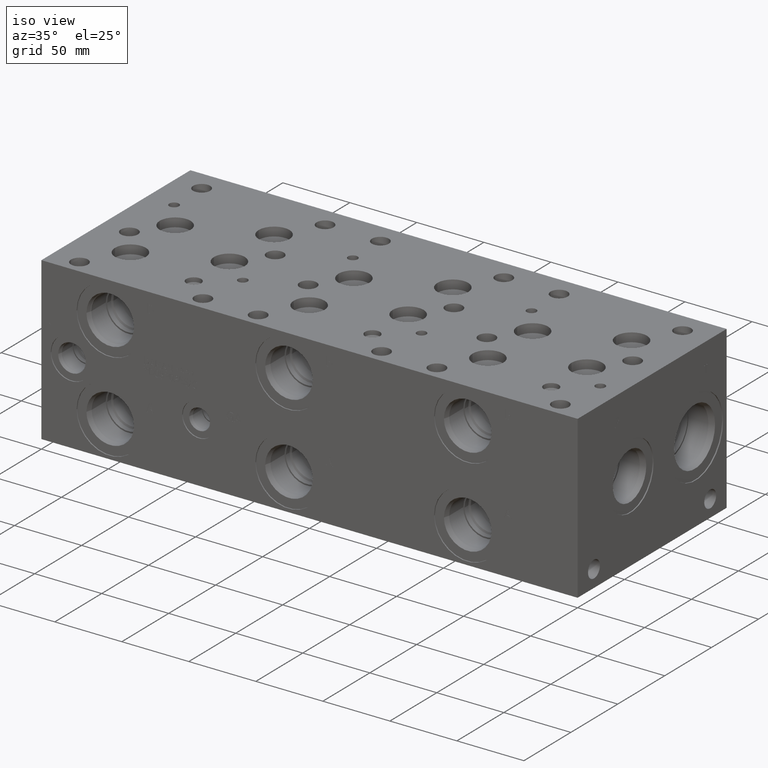
[diagram: clean part render]
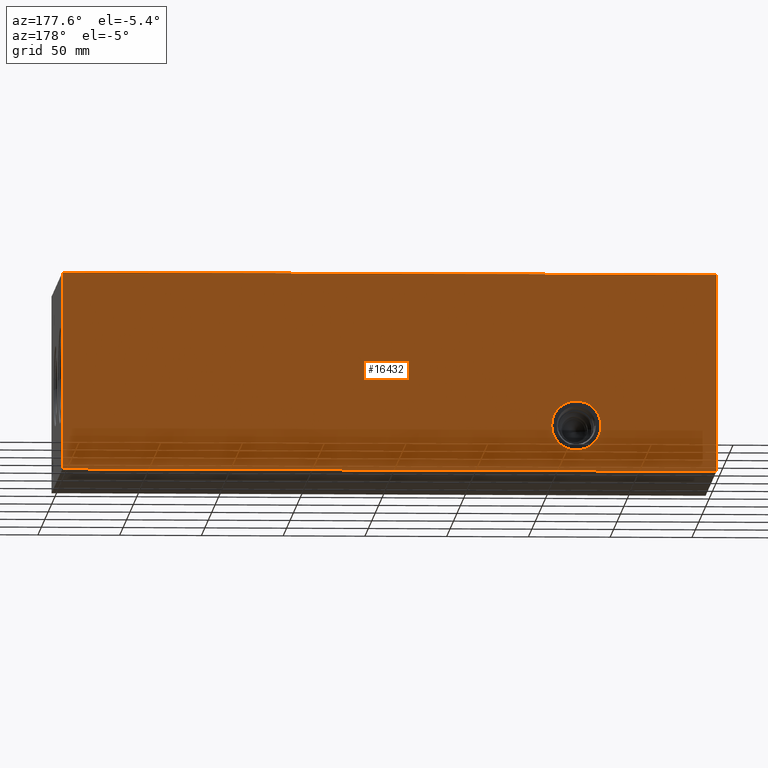
[diagram: tour spotlight — one face highlighted and labeled with its STEP entity id]
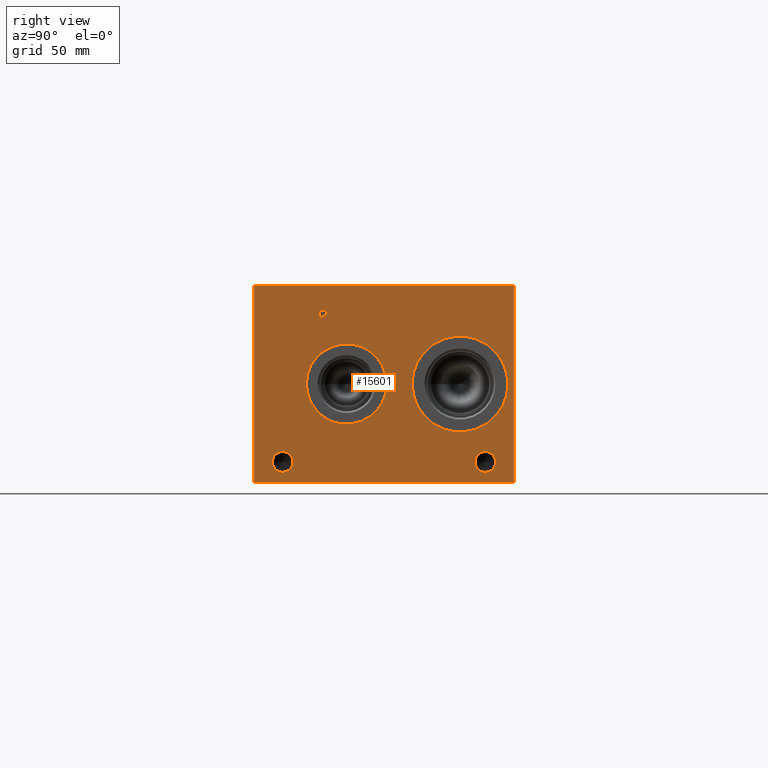
[diagram: tour spotlight — one face highlighted and labeled with its STEP entity id]
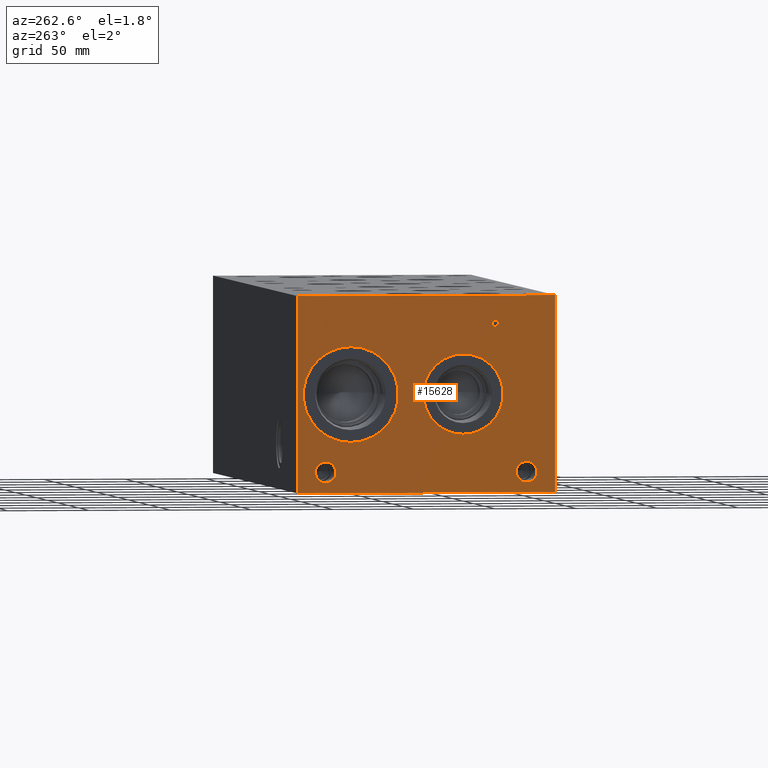
[diagram: tour spotlight — one face highlighted and labeled with its STEP entity id]
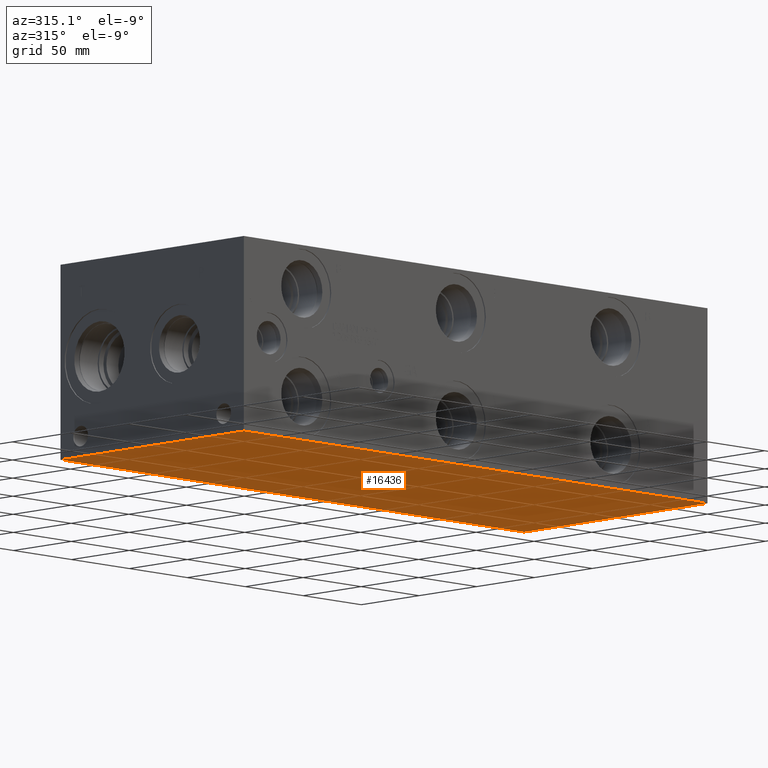
[diagram: tour spotlight — one face highlighted and labeled with its STEP entity id]
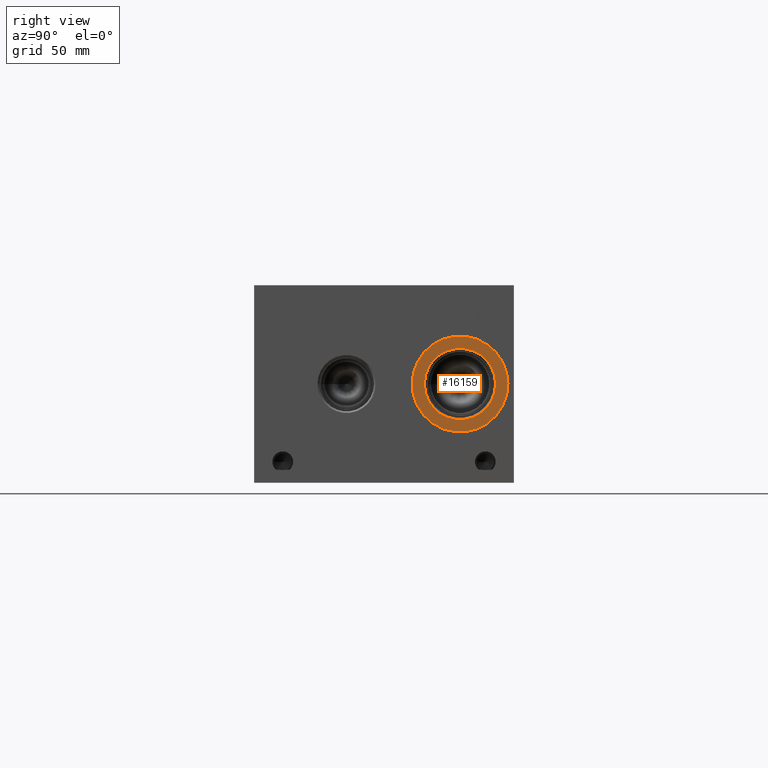
[diagram: tour spotlight — one face highlighted and labeled with its STEP entity id]
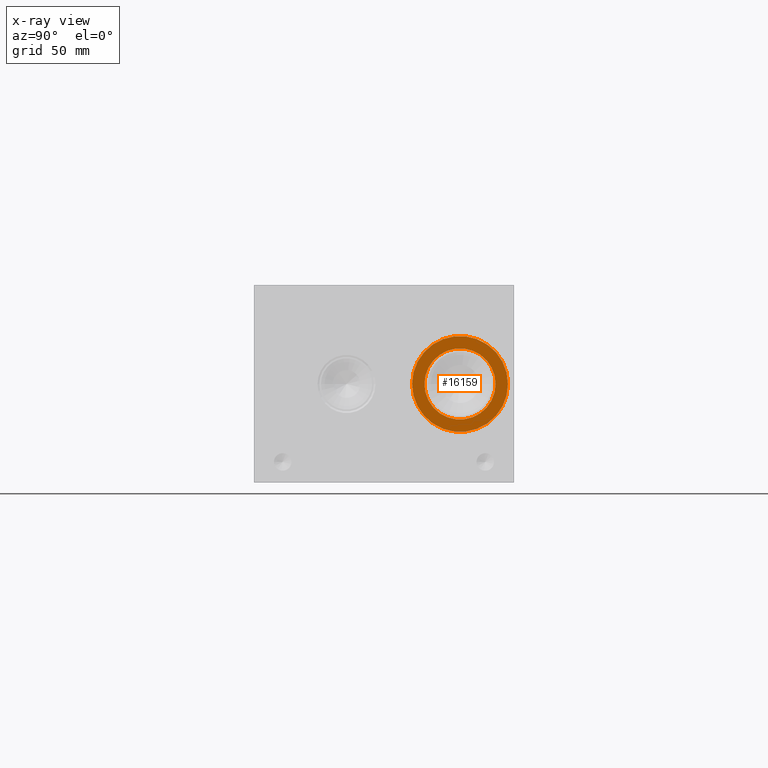
[diagram: x-ray of the same camera — body ghosted, this tour face saturated]
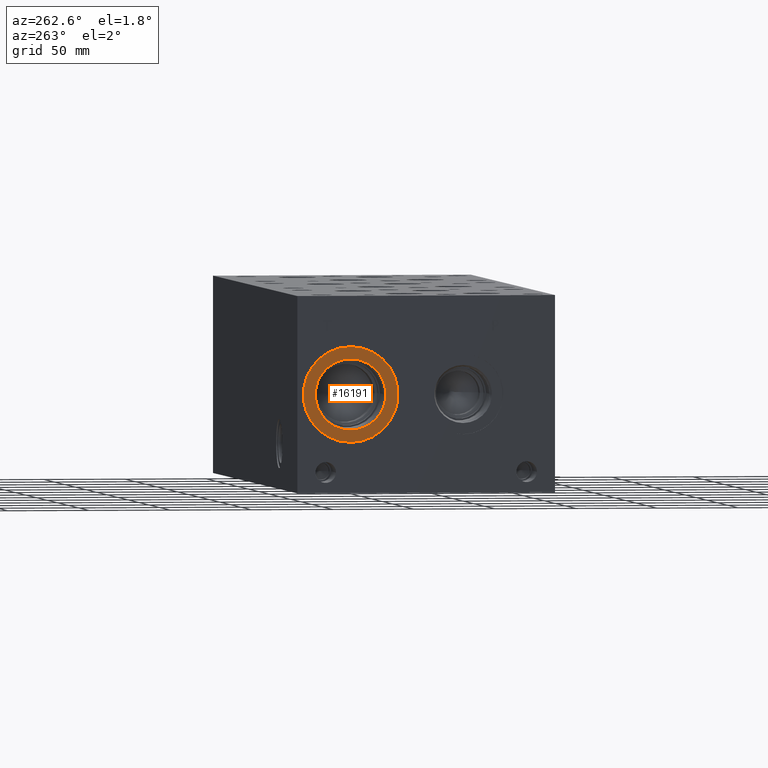
[diagram: tour spotlight — one face highlighted and labeled with its STEP entity id]
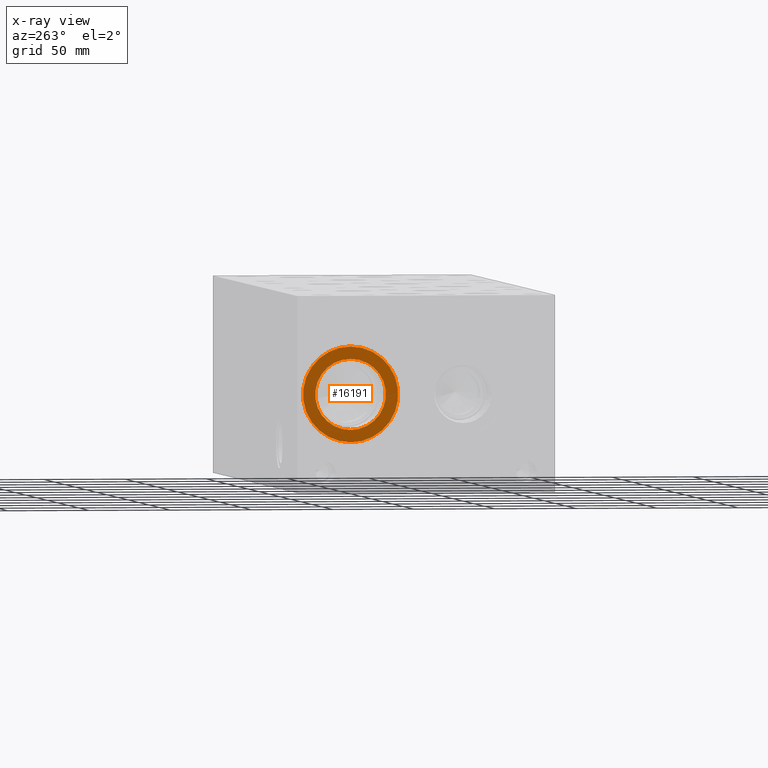
[diagram: x-ray of the same camera — body ghosted, this tour face saturated]
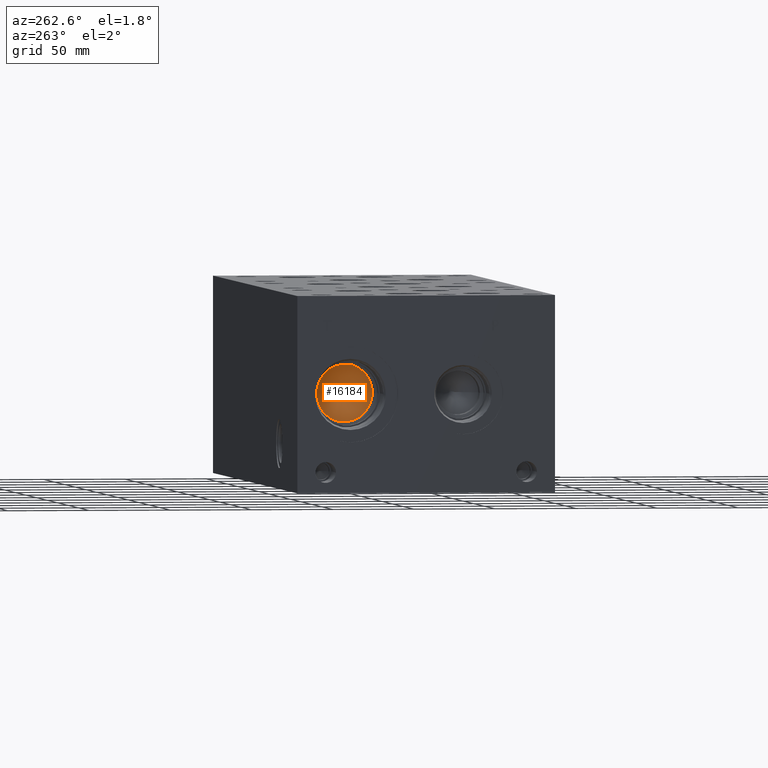
[diagram: tour spotlight — one face highlighted and labeled with its STEP entity id]
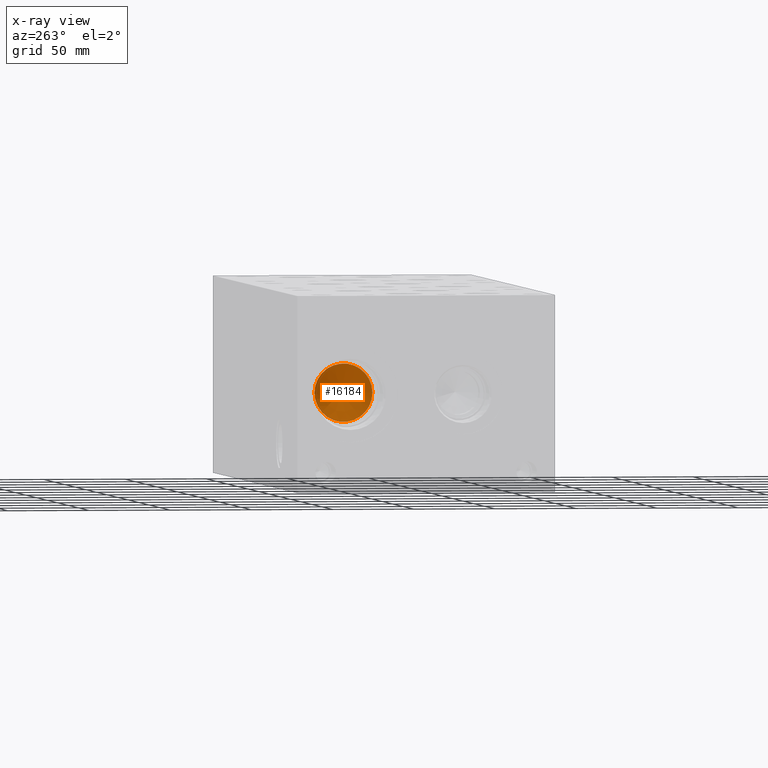
[diagram: x-ray of the same camera — body ghosted, this tour face saturated]
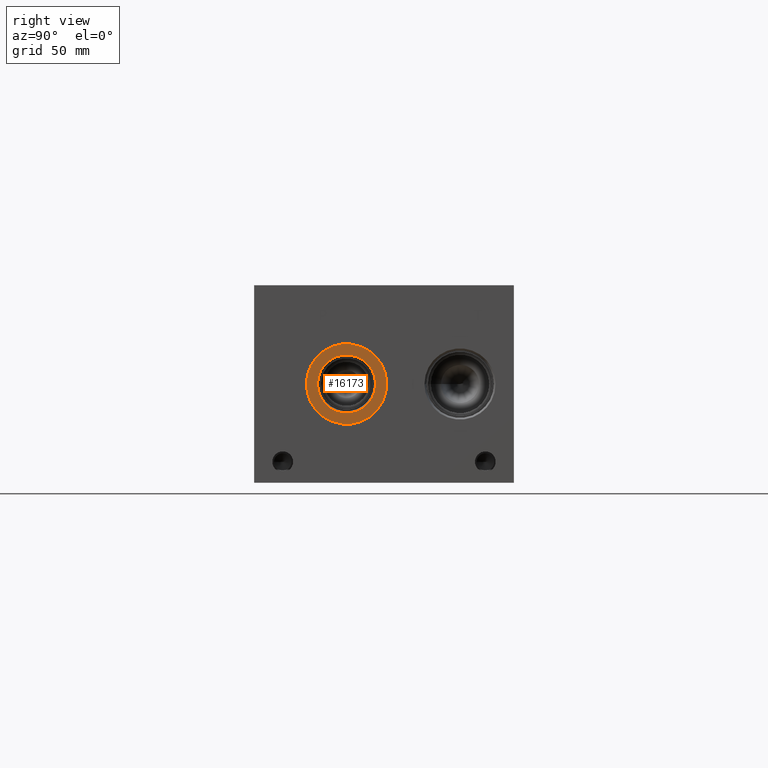
[diagram: tour spotlight — one face highlighted and labeled with its STEP entity id]
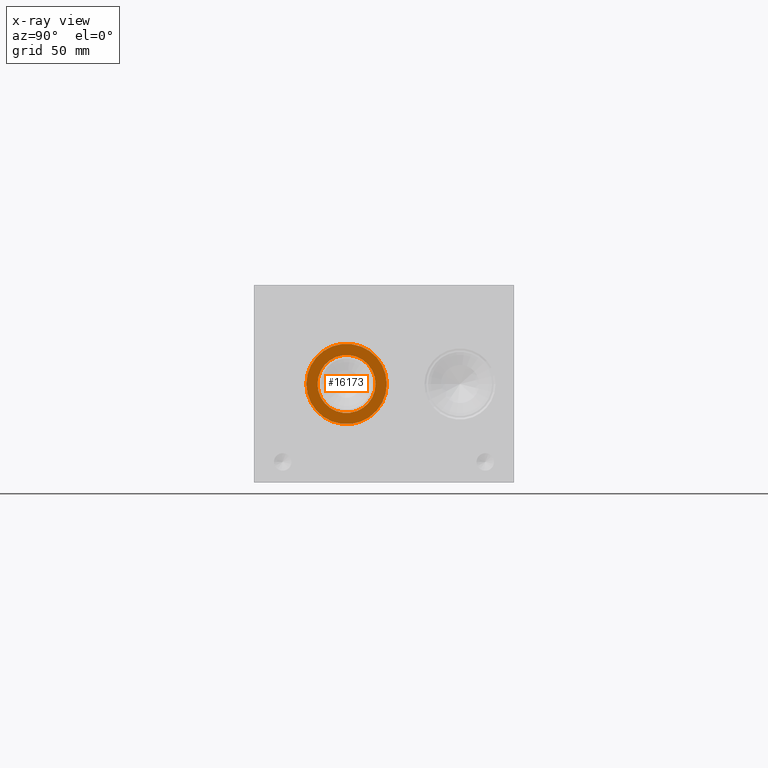
[diagram: x-ray of the same camera — body ghosted, this tour face saturated]
A machine part: a face-by-face anatomy tour. The part has 862 B-rep faces; the first image is the clean iso view, then the 8 largest visible faces are spotlighted one at a time (largest first), each with its STEP entity span.

Face 1 — auxiliary view, entity #16432. In plain terms, the highlighted planar face has unit normal (0, 1, 0).
Definition (entity closure, byte-faithful):
#291=CIRCLE('',#16844,15.08);
#292=CIRCLE('',#16845,15.08);
#881=FACE_BOUND('',#3368,.T.);
#2387=FACE_OUTER_BOUND('',#3367,.T.);
#3367=EDGE_LOOP('',(#14516,#14517,#14518,#14519));
#3368=EDGE_LOOP('',(#14520,#14521));
#3469=LINE('',#21576,#4847);
#3531=LINE('',#21854,#4909);
#4788=LINE('',#28690,#6166);
#4789=LINE('',#28691,#6167);
#4847=VECTOR('',#17711,10.);
#4909=VECTOR('',#17827,10.);
#6166=VECTOR('',#21310,10.);
#6167=VECTOR('',#21311,10.);
#6217=VERTEX_POINT('',#21573);
#6218=VERTEX_POINT('',#21575);
#6276=VERTEX_POINT('',#21847);
#6279=VERTEX_POINT('',#21852);
#7226=VERTEX_POINT('',#27151);
#7227=VERTEX_POINT('',#27152);
#7827=EDGE_CURVE('',#6217,#6218,#3469,.T.);
#7913=EDGE_CURVE('',#6276,#6279,#3531,.T.);
#9323=EDGE_CURVE('',#7226,#7227,#291,.T.);
#9324=EDGE_CURVE('',#7227,#7226,#292,.T.);
#10040=EDGE_CURVE('',#6217,#6276,#4788,.T.);
#10041=EDGE_CURVE('',#6218,#6279,#4789,.T.);
#14516=ORIENTED_EDGE('',*,*,#10040,.T.);
#14517=ORIENTED_EDGE('',*,*,#7913,.T.);
#14518=ORIENTED_EDGE('',*,*,#10041,.F.);
#14519=ORIENTED_EDGE('',*,*,#7827,.F.);
#14520=ORIENTED_EDGE('',*,*,#9323,.T.);
#14521=ORIENTED_EDGE('',*,*,#9324,.T.);
#15027=PLANE('',#17609);
#16432=ADVANCED_FACE('',(#2387,#881),#15027,.T.);
#16844=AXIS2_PLACEMENT_3D('',#27153,#19533,#19534);
#16845=AXIS2_PLACEMENT_3D('',#27154,#19535,#19536);
#17609=AXIS2_PLACEMENT_3D('',#28689,#21308,#21309);
#17711=DIRECTION('',(0.,0.,1.));
#17827=DIRECTION('',(0.,0.,1.));
#19533=DIRECTION('center_axis',(0.,-1.,0.));
#19534=DIRECTION('ref_axis',(1.,0.,0.));
#19535=DIRECTION('center_axis',(0.,-1.,0.));
#19536=DIRECTION('ref_axis',(1.,0.,0.));
#21308=DIRECTION('center_axis',(0.,1.,0.));
#21309=DIRECTION('ref_axis',(-1.,0.,0.));
#21310=DIRECTION('',(-1.,0.,0.));
#21311=DIRECTION('',(-1.,0.,0.));
#21573=CARTESIAN_POINT('',(400.05,158.75,0.));
#21575=CARTESIAN_POINT('',(400.05,158.75,120.65));
#21576=CARTESIAN_POINT('',(400.05,158.75,0.));
#21847=CARTESIAN_POINT('',(0.,158.75,0.));
#21852=CARTESIAN_POINT('',(0.,158.75,120.65));
#21854=CARTESIAN_POINT('',(0.,158.75,0.));
#27151=CARTESIAN_POINT('',(100.805,158.75,27.7876));
#27152=CARTESIAN_POINT('',(70.645,158.75,27.7876));
#27153=CARTESIAN_POINT('Origin',(85.725,158.75,27.7876));
#27154=CARTESIAN_POINT('Origin',(85.725,158.75,27.7876));
#28689=CARTESIAN_POINT('Origin',(400.05,158.75,0.));
#28690=CARTESIAN_POINT('',(400.05,158.75,0.));
#28691=CARTESIAN_POINT('',(400.05,158.75,120.65));

Face 2 — right view, entity #15601. In plain terms, the highlighted planar face has unit normal (1, 0, 0).
Definition (entity closure, byte-faithful):
#259=CIRCLE('',#16470,6.35);
#260=CIRCLE('',#16471,6.35);
#261=CIRCLE('',#16472,6.35);
#262=CIRCLE('',#16473,6.35);
#263=CIRCLE('',#16474,24.5618);
#264=CIRCLE('',#16475,24.5618);
#265=CIRCLE('',#16476,29.2862);
#266=CIRCLE('',#16477,29.2862);
#764=FACE_BOUND('',#2420,.T.);
#765=FACE_BOUND('',#2421,.T.);
#766=FACE_BOUND('',#2422,.T.);
#767=FACE_BOUND('',#2423,.T.);
#768=FACE_BOUND('',#2424,.T.);
#769=FACE_BOUND('',#2425,.T.);
#929=B_SPLINE_CURVE_WITH_KNOTS('',2,(#21474,#21475,#21476,#21477),
 .UNSPECIFIED.,.F.,.F.,(3,1,3),(0.,1.,2.),.UNSPECIFIED.);
#931=B_SPLINE_CURVE_WITH_KNOTS('',2,(#21495,#21496,#21497,#21498),
 .UNSPECIFIED.,.F.,.F.,(3,1,3),(0.,1.,2.),.UNSPECIFIED.);
#933=B_SPLINE_CURVE_WITH_KNOTS('',2,(#21544,#21545,#21546,#21547),
 .UNSPECIFIED.,.F.,.F.,(3,1,3),(0.,1.,2.),.UNSPECIFIED.);
#935=B_SPLINE_CURVE_WITH_KNOTS('',2,(#21562,#21563,#21564,#21565),
 .UNSPECIFIED.,.F.,.F.,(3,1,3),(0.,1.,2.),.UNSPECIFIED.);
#1556=FACE_OUTER_BOUND('',#2419,.T.);
#2419=EDGE_LOOP('',(#10162,#10163,#10164,#10165));
#2420=EDGE_LOOP('',(#10166,#10167,#10168,#10169,#10170,#10171,#10172,#10173));
#2421=EDGE_LOOP('',(#10174,#10175));
#2422=EDGE_LOOP('',(#10176,#10177));
#2423=EDGE_LOOP('',(#10178,#10179));
#2424=EDGE_LOOP('',(#10180,#10181));
#2425=EDGE_LOOP('',(#10182,#10183,#10184,#10185,#10186,#10187,#10188,#10189,
#10190));
#3412=LINE('',#21324,#4790);
#3416=LINE('',#21332,#4794);
#3419=LINE('',#21338,#4797);
#3422=LINE('',#21344,#4800);
#3425=LINE('',#21350,#4803);
#3428=LINE('',#21356,#4806);
#3431=LINE('',#21362,#4809);
#3434=LINE('',#21367,#4812);
#3452=LINE('',#21507,#4830);
#3455=LINE('',#21513,#4833);
#3458=LINE('',#21519,#4836);
#3461=LINE('',#21525,#4839);
#3464=LINE('',#21531,#4842);
#3468=LINE('',#21574,#4846);
#3469=LINE('',#21576,#4847);
#3470=LINE('',#21578,#4848);
#3471=LINE('',#21579,#4849);
#4790=VECTOR('',#17618,10.);
#4794=VECTOR('',#17624,10.);
#4797=VECTOR('',#17629,10.);
#4800=VECTOR('',#17634,10.);
#4803=VECTOR('',#17639,10.);
#4806=VECTOR('',#17644,10.);
#4809=VECTOR('',#17649,10.);
#4812=VECTOR('',#17654,10.);
#4830=VECTOR('',#17682,10.);
#4833=VECTOR('',#17687,10.);
#4836=VECTOR('',#17692,10.);
#4839=VECTOR('',#17697,10.);
#4842=VECTOR('',#17702,10.);
#4846=VECTOR('',#17710,10.);
#4847=VECTOR('',#17711,10.);
#4848=VECTOR('',#17712,10.);
#4849=VECTOR('',#17713,10.);
#6168=VERTEX_POINT('',#21322);
#6169=VERTEX_POINT('',#21323);
#6172=VERTEX_POINT('',#21331);
#6174=VERTEX_POINT('',#21337);
#6176=VERTEX_POINT('',#21343);
#6178=VERTEX_POINT('',#21349);
#6180=VERTEX_POINT('',#21355);
#6182=VERTEX_POINT('',#21361);
#6198=VERTEX_POINT('',#21472);
#6199=VERTEX_POINT('',#21473);
#6202=VERTEX_POINT('',#21494);
#6204=VERTEX_POINT('',#21506);
#6206=VERTEX_POINT('',#21512);
#6208=VERTEX_POINT('',#21518);
#6210=VERTEX_POINT('',#21524);
#6212=VERTEX_POINT('',#21530);
#6214=VERTEX_POINT('',#21543);
#6216=VERTEX_POINT('',#21572);
#6217=VERTEX_POINT('',#21573);
#6218=VERTEX_POINT('',#21575);
#6219=VERTEX_POINT('',#21577);
#6220=VERTEX_POINT('',#21580);
#6221=VERTEX_POINT('',#21581);
#6222=VERTEX_POINT('',#21584);
#6223=VERTEX_POINT('',#21585);
#6224=VERTEX_POINT('',#21588);
#6225=VERTEX_POINT('',#21589);
#6226=VERTEX_POINT('',#21592);
#6227=VERTEX_POINT('',#21593);
#7754=EDGE_CURVE('',#6168,#6169,#3412,.T.);
#7758=EDGE_CURVE('',#6172,#6168,#3416,.T.);
#7761=EDGE_CURVE('',#6174,#6172,#3419,.T.);
#7764=EDGE_CURVE('',#6176,#6174,#3422,.T.);
#7767=EDGE_CURVE('',#6178,#6176,#3425,.T.);
#7770=EDGE_CURVE('',#6180,#6178,#3428,.T.);
#7773=EDGE_CURVE('',#6182,#6180,#3431,.T.);
#7776=EDGE_CURVE('',#6169,#6182,#3434,.T.);
#7799=EDGE_CURVE('',#6198,#6199,#929,.T.);
#7803=EDGE_CURVE('',#6202,#6198,#931,.T.);
#7806=EDGE_CURVE('',#6204,#6202,#3452,.T.);
#7809=EDGE_CURVE('',#6206,#6204,#3455,.T.);
#7812=EDGE_CURVE('',#6208,#6206,#3458,.T.);
#7815=EDGE_CURVE('',#6210,#6208,#3461,.T.);
#7818=EDGE_CURVE('',#6212,#6210,#3464,.T.);
#7821=EDGE_CURVE('',#6214,#6212,#933,.T.);
#7824=EDGE_CURVE('',#6199,#6214,#935,.T.);
#7826=EDGE_CURVE('',#6216,#6217,#3468,.T.);
#7827=EDGE_CURVE('',#6217,#6218,#3469,.T.);
#7828=EDGE_CURVE('',#6219,#6218,#3470,.T.);
#7829=EDGE_CURVE('',#6216,#6219,#3471,.T.);
#7830=EDGE_CURVE('',#6220,#6221,#259,.T.);
#7831=EDGE_CURVE('',#6221,#6220,#260,.T.);
#7832=EDGE_CURVE('',#6222,#6223,#261,.T.);
#7833=EDGE_CURVE('',#6223,#6222,#262,.T.);
#7834=EDGE_CURVE('',#6224,#6225,#263,.T.);
#7835=EDGE_CURVE('',#6225,#6224,#264,.T.);
#7836=EDGE_CURVE('',#6226,#6227,#265,.T.);
#7837=EDGE_CURVE('',#6227,#6226,#266,.T.);
#10162=ORIENTED_EDGE('',*,*,#7826,.T.);
#10163=ORIENTED_EDGE('',*,*,#7827,.T.);
#10164=ORIENTED_EDGE('',*,*,#7828,.F.);
#10165=ORIENTED_EDGE('',*,*,#7829,.F.);
#10166=ORIENTED_EDGE('',*,*,#7754,.T.);
#10167=ORIENTED_EDGE('',*,*,#7776,.T.);
#10168=ORIENTED_EDGE('',*,*,#7773,.T.);
#10169=ORIENTED_EDGE('',*,*,#7770,.T.);
#10170=ORIENTED_EDGE('',*,*,#7767,.T.);
#10171=ORIENTED_EDGE('',*,*,#7764,.T.);
#10172=ORIENTED_EDGE('',*,*,#7761,.T.);
#10173=ORIENTED_EDGE('',*,*,#7758,.T.);
#10174=ORIENTED_EDGE('',*,*,#7830,.T.);
#10175=ORIENTED_EDGE('',*,*,#7831,.T.);
#10176=ORIENTED_EDGE('',*,*,#7832,.T.);
#10177=ORIENTED_EDGE('',*,*,#7833,.T.);
#10178=ORIENTED_EDGE('',*,*,#7834,.T.);
#10179=ORIENTED_EDGE('',*,*,#7835,.T.);
#10180=ORIENTED_EDGE('',*,*,#7836,.T.);
#10181=ORIENTED_EDGE('',*,*,#7837,.T.);
#10182=ORIENTED_EDGE('',*,*,#7799,.T.);
#10183=ORIENTED_EDGE('',*,*,#7824,.T.);
#10184=ORIENTED_EDGE('',*,*,#7821,.T.);
#10185=ORIENTED_EDGE('',*,*,#7818,.T.);
#10186=ORIENTED_EDGE('',*,*,#7815,.T.);
#10187=ORIENTED_EDGE('',*,*,#7812,.T.);
#10188=ORIENTED_EDGE('',*,*,#7809,.T.);
#10189=ORIENTED_EDGE('',*,*,#7806,.T.);
#10190=ORIENTED_EDGE('',*,*,#7803,.T.);
#14636=PLANE('',#16469);
#15601=ADVANCED_FACE('',(#1556,#764,#765,#766,#767,#768,#769),#14636,.T.);
#16469=AXIS2_PLACEMENT_3D('',#21571,#17708,#17709);
#16470=AXIS2_PLACEMENT_3D('',#21582,#17714,#17715);
#16471=AXIS2_PLACEMENT_3D('',#21583,#17716,#17717);
#16472=AXIS2_PLACEMENT_3D('',#21586,#17718,#17719);
#16473=AXIS2_PLACEMENT_3D('',#21587,#17720,#17721);
#16474=AXIS2_PLACEMENT_3D('',#21590,#17722,#17723);
#16475=AXIS2_PLACEMENT_3D('',#21591,#17724,#17725);
#16476=AXIS2_PLACEMENT_3D('',#21594,#17726,#17727);
#16477=AXIS2_PLACEMENT_3D('',#21595,#17728,#17729);
#17618=DIRECTION('',(0.,-1.,0.));
#17624=DIRECTION('',(0.,0.,-1.));
#17629=DIRECTION('',(0.,-1.,0.));
#17634=DIRECTION('',(0.,0.,-1.));
#17639=DIRECTION('',(0.,1.,0.));
#17644=DIRECTION('',(0.,0.,1.));
#17649=DIRECTION('',(0.,-1.,0.));
#17654=DIRECTION('',(0.,0.,1.));
#17682=DIRECTION('',(0.,1.,0.));
#17687=DIRECTION('',(0.,0.,1.));
#17692=DIRECTION('',(0.,-1.,0.));
#17697=DIRECTION('',(0.,0.,-1.));
#17702=DIRECTION('',(0.,-1.,0.));
#17708=DIRECTION('center_axis',(1.,0.,0.));
#17709=DIRECTION('ref_axis',(0.,1.,0.));
#17710=DIRECTION('',(0.,1.,0.));
#17711=DIRECTION('',(0.,0.,1.));
#17712=DIRECTION('',(0.,1.,0.));
#17713=DIRECTION('',(0.,0.,1.));
#17714=DIRECTION('center_axis',(-1.,0.,0.));
#17715=DIRECTION('ref_axis',(0.,1.,0.));
#17716=DIRECTION('center_axis',(-1.,0.,0.));
#17717=DIRECTION('ref_axis',(0.,1.,0.));
#17718=DIRECTION('center_axis',(-1.,0.,0.));
#17719=DIRECTION('ref_axis',(0.,1.,0.));
#17720=DIRECTION('center_axis',(-1.,0.,0.));
#17721=DIRECTION('ref_axis',(0.,1.,0.));
#17722=DIRECTION('center_axis',(-1.,0.,0.));
#17723=DIRECTION('ref_axis',(0.,1.,0.));
#17724=DIRECTION('center_axis',(-1.,0.,0.));
#17725=DIRECTION('ref_axis',(0.,1.,0.));
#17726=DIRECTION('center_axis',(-1.,0.,0.));
#17727=DIRECTION('ref_axis',(0.,1.,0.));
#17728=DIRECTION('center_axis',(-1.,0.,0.));
#17729=DIRECTION('ref_axis',(0.,1.,0.));
#21322=CARTESIAN_POINT('',(400.05,137.182765271453,99.187));
#21323=CARTESIAN_POINT('',(400.05,136.338843079914,99.187));
#21324=CARTESIAN_POINT('',(400.05,68.5913826357265,99.187));
#21331=CARTESIAN_POINT('',(400.05,137.182765271453,104.785703319482));
#21332=CARTESIAN_POINT('',(400.05,137.182765271453,52.3928516597408));
#21337=CARTESIAN_POINT('',(400.05,139.313154218388,104.785703319482));
#21338=CARTESIAN_POINT('',(400.05,69.656577109194,104.785703319482));
#21343=CARTESIAN_POINT('',(400.05,139.313154218388,105.536999904633));
#21344=CARTESIAN_POINT('',(400.05,139.313154218388,52.7684999523163));
#21349=CARTESIAN_POINT('',(400.05,134.208454132978,105.536999904633));
#21350=CARTESIAN_POINT('',(400.05,67.1042270664892,105.536999904633));
#21355=CARTESIAN_POINT('',(400.05,134.208454132978,104.785703319482));
#21356=CARTESIAN_POINT('',(400.05,134.208454132978,52.3928516597408));
#21361=CARTESIAN_POINT('',(400.05,136.338843079914,104.785703319482));
#21362=CARTESIAN_POINT('',(400.05,68.1694215399568,104.785703319482));
#21367=CARTESIAN_POINT('',(400.05,136.338843079914,49.5935));
#21472=CARTESIAN_POINT('',(400.05,43.3721672023594,105.140768143971));
#21473=CARTESIAN_POINT('',(400.05,44.128609654532,103.622737372604));
#21474=CARTESIAN_POINT('Ctrl Pts',(400.05,43.3721672023594,105.140768143971));
#21475=CARTESIAN_POINT('Ctrl Pts',(400.05,43.7272320268486,104.898912393956));
#21476=CARTESIAN_POINT('Ctrl Pts',(400.05,44.128609654532,104.152761675827));
#21477=CARTESIAN_POINT('Ctrl Pts',(400.05,44.128609654532,103.622737372604));
#21494=CARTESIAN_POINT('',(400.05,41.7100521543883,105.536999904633));
#21495=CARTESIAN_POINT('Ctrl Pts',(400.05,41.7100521543883,105.536999904633));
#21496=CARTESIAN_POINT('Ctrl Pts',(400.05,42.2760975267624,105.536999904633));
#21497=CARTESIAN_POINT('Ctrl Pts',(400.05,43.068561048086,105.351748691856));
#21498=CARTESIAN_POINT('Ctrl Pts',(400.05,43.3721672023594,105.140768143971));
#21506=CARTESIAN_POINT('',(400.05,40.1148333776978,105.536999904633));
#21507=CARTESIAN_POINT('',(400.05,20.0574166888489,105.536999904633));
#21512=CARTESIAN_POINT('',(400.05,40.1148333776978,99.187));
#21513=CARTESIAN_POINT('',(400.05,40.1148333776978,49.5935));
#21518=CARTESIAN_POINT('',(400.05,40.9587555692373,99.187));
#21519=CARTESIAN_POINT('',(400.05,20.4793777846186,99.187));
#21524=CARTESIAN_POINT('',(400.05,40.9587555692373,101.554098829928));
#21525=CARTESIAN_POINT('',(400.05,40.9587555692373,50.7770494149639));
#21530=CARTESIAN_POINT('',(400.05,41.6740310852372,101.554098829928));
#21531=CARTESIAN_POINT('',(400.05,20.8370155426186,101.554098829928));
#21543=CARTESIAN_POINT('',(400.05,43.5728560162011,102.21276980869));
#21544=CARTESIAN_POINT('Ctrl Pts',(400.05,43.5728560162011,102.21276980869));
#21545=CARTESIAN_POINT('Ctrl Pts',(400.05,43.2435205268198,101.888580186331));
#21546=CARTESIAN_POINT('Ctrl Pts',(400.05,42.3532855320861,101.554098829928));
#21547=CARTESIAN_POINT('Ctrl Pts',(400.05,41.6740310852372,101.554098829928));
#21562=CARTESIAN_POINT('Ctrl Pts',(400.05,44.128609654532,103.622737372604));
#21563=CARTESIAN_POINT('Ctrl Pts',(400.05,44.128609654532,103.211068010877));
#21564=CARTESIAN_POINT('Ctrl Pts',(400.05,43.8352952343018,102.47006315977));
#21565=CARTESIAN_POINT('Ctrl Pts',(400.05,43.5728560162011,102.21276980869));
#21571=CARTESIAN_POINT('Origin',(400.05,0.,0.));
#21572=CARTESIAN_POINT('',(400.05,0.,0.));
#21573=CARTESIAN_POINT('',(400.05,158.75,0.));
#21574=CARTESIAN_POINT('',(400.05,0.,0.));
#21575=CARTESIAN_POINT('',(400.05,158.75,120.65));
#21576=CARTESIAN_POINT('',(400.05,158.75,0.));
#21577=CARTESIAN_POINT('',(400.05,0.,120.65));
#21578=CARTESIAN_POINT('',(400.05,0.,120.65));
#21579=CARTESIAN_POINT('',(400.05,0.,0.));
#21580=CARTESIAN_POINT('',(400.05,147.6248,12.7));
#21581=CARTESIAN_POINT('',(400.05,134.9248,12.7));
#21582=CARTESIAN_POINT('Origin',(400.05,141.2748,12.7));
#21583=CARTESIAN_POINT('Origin',(400.05,141.2748,12.7));
#21584=CARTESIAN_POINT('',(400.05,23.7998,12.7));
#21585=CARTESIAN_POINT('',(400.05,11.0998,12.7));
#21586=CARTESIAN_POINT('Origin',(400.05,17.4498,12.7));
#21587=CARTESIAN_POINT('Origin',(400.05,17.4498,12.7));
#21588=CARTESIAN_POINT('',(400.05,81.0514,60.325));
#21589=CARTESIAN_POINT('',(400.05,31.9278,60.325));
#21590=CARTESIAN_POINT('Origin',(400.05,56.4896,60.325));
#21591=CARTESIAN_POINT('Origin',(400.05,56.4896,60.325));
#21592=CARTESIAN_POINT('',(400.05,155.1178,60.325));
#21593=CARTESIAN_POINT('',(400.05,96.5454,60.325));
#21594=CARTESIAN_POINT('Origin',(400.05,125.8316,60.325));
#21595=CARTESIAN_POINT('Origin',(400.05,125.8316,60.325));

Face 3 — auxiliary view, entity #15628. In plain terms, the highlighted planar face has unit normal (-1, 0, 0).
Definition (entity closure, byte-faithful):
#267=CIRCLE('',#16497,6.35);
#268=CIRCLE('',#16498,6.35);
#269=CIRCLE('',#16499,6.35);
#270=CIRCLE('',#16500,6.35);
#271=CIRCLE('',#16501,24.5618);
#272=CIRCLE('',#16502,24.5618);
#273=CIRCLE('',#16503,29.2862);
#274=CIRCLE('',#16504,29.2862);
#771=FACE_BOUND('',#2454,.T.);
#772=FACE_BOUND('',#2455,.T.);
#773=FACE_BOUND('',#2456,.T.);
#774=FACE_BOUND('',#2457,.T.);
#775=FACE_BOUND('',#2458,.T.);
#776=FACE_BOUND('',#2459,.T.);
#945=B_SPLINE_CURVE_WITH_KNOTS('',2,(#21749,#21750,#21751,#21752),
 .UNSPECIFIED.,.F.,.F.,(3,1,3),(0.,1.,2.),.UNSPECIFIED.);
#947=B_SPLINE_CURVE_WITH_KNOTS('',2,(#21770,#21771,#21772,#21773),
 .UNSPECIFIED.,.F.,.F.,(3,1,3),(0.,1.,2.),.UNSPECIFIED.);
#949=B_SPLINE_CURVE_WITH_KNOTS('',2,(#21819,#21820,#21821,#21822),
 .UNSPECIFIED.,.F.,.F.,(3,1,3),(0.,1.,2.),.UNSPECIFIED.);
#951=B_SPLINE_CURVE_WITH_KNOTS('',2,(#21837,#21838,#21839,#21840),
 .UNSPECIFIED.,.F.,.F.,(3,1,3),(0.,1.,2.),.UNSPECIFIED.);
#1583=FACE_OUTER_BOUND('',#2453,.T.);
#2453=EDGE_LOOP('',(#10311,#10312,#10313,#10314));
#2454=EDGE_LOOP('',(#10315,#10316,#10317,#10318,#10319,#10320,#10321,#10322));
#2455=EDGE_LOOP('',(#10323,#10324));
#2456=EDGE_LOOP('',(#10325,#10326));
#2457=EDGE_LOOP('',(#10327,#10328));
#2458=EDGE_LOOP('',(#10329,#10330));
#2459=EDGE_LOOP('',(#10331,#10332,#10333,#10334,#10335,#10336,#10337,#10338,
#10339));
#3472=LINE('',#21599,#4850);
#3476=LINE('',#21607,#4854);
#3479=LINE('',#21613,#4857);
#3482=LINE('',#21619,#4860);
#3485=LINE('',#21625,#4863);
#3488=LINE('',#21631,#4866);
#3491=LINE('',#21637,#4869);
#3494=LINE('',#21642,#4872);
#3512=LINE('',#21782,#4890);
#3515=LINE('',#21788,#4893);
#3518=LINE('',#21794,#4896);
#3521=LINE('',#21800,#4899);
#3524=LINE('',#21806,#4902);
#3528=LINE('',#21849,#4906);
#3529=LINE('',#21851,#4907);
#3530=LINE('',#21853,#4908);
#3531=LINE('',#21854,#4909);
#4850=VECTOR('',#17732,10.);
#4854=VECTOR('',#17738,10.);
#4857=VECTOR('',#17743,10.);
#4860=VECTOR('',#17748,10.);
#4863=VECTOR('',#17753,10.);
#4866=VECTOR('',#17758,10.);
#4869=VECTOR('',#17763,10.);
#4872=VECTOR('',#17768,10.);
#4890=VECTOR('',#17796,10.);
#4893=VECTOR('',#17801,10.);
#4896=VECTOR('',#17806,10.);
#4899=VECTOR('',#17811,10.);
#4902=VECTOR('',#17816,10.);
#4906=VECTOR('',#17824,10.);
#4907=VECTOR('',#17825,10.);
#4908=VECTOR('',#17826,10.);
#4909=VECTOR('',#17827,10.);
#6228=VERTEX_POINT('',#21597);
#6229=VERTEX_POINT('',#21598);
#6232=VERTEX_POINT('',#21606);
#6234=VERTEX_POINT('',#21612);
#6236=VERTEX_POINT('',#21618);
#6238=VERTEX_POINT('',#21624);
#6240=VERTEX_POINT('',#21630);
#6242=VERTEX_POINT('',#21636);
#6258=VERTEX_POINT('',#21747);
#6259=VERTEX_POINT('',#21748);
#6262=VERTEX_POINT('',#21769);
#6264=VERTEX_POINT('',#21781);
#6266=VERTEX_POINT('',#21787);
#6268=VERTEX_POINT('',#21793);
#6270=VERTEX_POINT('',#21799);
#6272=VERTEX_POINT('',#21805);
#6274=VERTEX_POINT('',#21818);
#6276=VERTEX_POINT('',#21847);
#6277=VERTEX_POINT('',#21848);
#6278=VERTEX_POINT('',#21850);
#6279=VERTEX_POINT('',#21852);
#6280=VERTEX_POINT('',#21855);
#6281=VERTEX_POINT('',#21856);
#6282=VERTEX_POINT('',#21859);
#6283=VERTEX_POINT('',#21860);
#6284=VERTEX_POINT('',#21863);
#6285=VERTEX_POINT('',#21864);
#6286=VERTEX_POINT('',#21867);
#6287=VERTEX_POINT('',#21868);
#7838=EDGE_CURVE('',#6228,#6229,#3472,.T.);
#7842=EDGE_CURVE('',#6232,#6228,#3476,.T.);
#7845=EDGE_CURVE('',#6234,#6232,#3479,.T.);
#7848=EDGE_CURVE('',#6236,#6234,#3482,.T.);
#7851=EDGE_CURVE('',#6238,#6236,#3485,.T.);
#7854=EDGE_CURVE('',#6240,#6238,#3488,.T.);
#7857=EDGE_CURVE('',#6242,#6240,#3491,.T.);
#7860=EDGE_CURVE('',#6229,#6242,#3494,.T.);
#7883=EDGE_CURVE('',#6258,#6259,#945,.T.);
#7887=EDGE_CURVE('',#6262,#6258,#947,.T.);
#7890=EDGE_CURVE('',#6264,#6262,#3512,.T.);
#7893=EDGE_CURVE('',#6266,#6264,#3515,.T.);
#7896=EDGE_CURVE('',#6268,#6266,#3518,.T.);
#7899=EDGE_CURVE('',#6270,#6268,#3521,.T.);
#7902=EDGE_CURVE('',#6272,#6270,#3524,.T.);
#7905=EDGE_CURVE('',#6274,#6272,#949,.T.);
#7908=EDGE_CURVE('',#6259,#6274,#951,.T.);
#7910=EDGE_CURVE('',#6276,#6277,#3528,.T.);
#7911=EDGE_CURVE('',#6277,#6278,#3529,.T.);
#7912=EDGE_CURVE('',#6279,#6278,#3530,.T.);
#7913=EDGE_CURVE('',#6276,#6279,#3531,.T.);
#7914=EDGE_CURVE('',#6280,#6281,#267,.T.);
#7915=EDGE_CURVE('',#6281,#6280,#268,.T.);
#7916=EDGE_CURVE('',#6282,#6283,#269,.T.);
#7917=EDGE_CURVE('',#6283,#6282,#270,.T.);
#7918=EDGE_CURVE('',#6284,#6285,#271,.T.);
#7919=EDGE_CURVE('',#6285,#6284,#272,.T.);
#7920=EDGE_CURVE('',#6286,#6287,#273,.T.);
#7921=EDGE_CURVE('',#6287,#6286,#274,.T.);
#10311=ORIENTED_EDGE('',*,*,#7910,.T.);
#10312=ORIENTED_EDGE('',*,*,#7911,.T.);
#10313=ORIENTED_EDGE('',*,*,#7912,.F.);
#10314=ORIENTED_EDGE('',*,*,#7913,.F.);
#10315=ORIENTED_EDGE('',*,*,#7838,.T.);
#10316=ORIENTED_EDGE('',*,*,#7860,.T.);
#10317=ORIENTED_EDGE('',*,*,#7857,.T.);
#10318=ORIENTED_EDGE('',*,*,#7854,.T.);
#10319=ORIENTED_EDGE('',*,*,#7851,.T.);
#10320=ORIENTED_EDGE('',*,*,#7848,.T.);
#10321=ORIENTED_EDGE('',*,*,#7845,.T.);
#10322=ORIENTED_EDGE('',*,*,#7842,.T.);
#10323=ORIENTED_EDGE('',*,*,#7914,.T.);
#10324=ORIENTED_EDGE('',*,*,#7915,.T.);
#10325=ORIENTED_EDGE('',*,*,#7916,.T.);
#10326=ORIENTED_EDGE('',*,*,#7917,.T.);
#10327=ORIENTED_EDGE('',*,*,#7918,.T.);
#10328=ORIENTED_EDGE('',*,*,#7919,.T.);
#10329=ORIENTED_EDGE('',*,*,#7920,.T.);
#10330=ORIENTED_EDGE('',*,*,#7921,.T.);
#10331=ORIENTED_EDGE('',*,*,#7883,.T.);
#10332=ORIENTED_EDGE('',*,*,#7908,.T.);
#10333=ORIENTED_EDGE('',*,*,#7905,.T.);
#10334=ORIENTED_EDGE('',*,*,#7902,.T.);
#10335=ORIENTED_EDGE('',*,*,#7899,.T.);
#10336=ORIENTED_EDGE('',*,*,#7896,.T.);
#10337=ORIENTED_EDGE('',*,*,#7893,.T.);
#10338=ORIENTED_EDGE('',*,*,#7890,.T.);
#10339=ORIENTED_EDGE('',*,*,#7887,.T.);
#14655=PLANE('',#16496);
#15628=ADVANCED_FACE('',(#1583,#771,#772,#773,#774,#775,#776),#14655,.T.);
#16496=AXIS2_PLACEMENT_3D('',#21846,#17822,#17823);
#16497=AXIS2_PLACEMENT_3D('',#21857,#17828,#17829);
#16498=AXIS2_PLACEMENT_3D('',#21858,#17830,#17831);
#16499=AXIS2_PLACEMENT_3D('',#21861,#17832,#17833);
#16500=AXIS2_PLACEMENT_3D('',#21862,#17834,#17835);
#16501=AXIS2_PLACEMENT_3D('',#21865,#17836,#17837);
#16502=AXIS2_PLACEMENT_3D('',#21866,#17838,#17839);
#16503=AXIS2_PLACEMENT_3D('',#21869,#17840,#17841);
#16504=AXIS2_PLACEMENT_3D('',#21870,#17842,#17843);
#17732=DIRECTION('',(0.,1.,0.));
#17738=DIRECTION('',(0.,3.17280044688052E-15,-1.));
#17743=DIRECTION('',(0.,1.,0.));
#17748=DIRECTION('',(0.,0.,-1.));
#17753=DIRECTION('',(0.,-1.,0.));
#17758=DIRECTION('',(0.,0.,1.));
#17763=DIRECTION('',(0.,1.,0.));
#17768=DIRECTION('',(0.,-3.17280044688051E-15,1.));
#17796=DIRECTION('',(0.,-1.,0.));
#17801=DIRECTION('',(0.,-2.79741238752512E-15,1.));
#17806=DIRECTION('',(0.,1.,0.));
#17811=DIRECTION('',(0.,3.75218139805001E-15,-1.));
#17816=DIRECTION('',(0.,1.,0.));
#17822=DIRECTION('center_axis',(-1.,0.,0.));
#17823=DIRECTION('ref_axis',(0.,-1.,0.));
#17824=DIRECTION('',(0.,-1.,0.));
#17825=DIRECTION('',(0.,0.,1.));
#17826=DIRECTION('',(0.,-1.,0.));
#17827=DIRECTION('',(0.,0.,1.));
#17828=DIRECTION('center_axis',(1.,0.,0.));
#17829=DIRECTION('ref_axis',(0.,1.,0.));
#17830=DIRECTION('center_axis',(1.,0.,0.));
#17831=DIRECTION('ref_axis',(0.,1.,0.));
#17832=DIRECTION('center_axis',(1.,0.,0.));
#17833=DIRECTION('ref_axis',(0.,1.,0.));
#17834=DIRECTION('center_axis',(1.,0.,0.));
#17835=DIRECTION('ref_axis',(0.,1.,0.));
#17836=DIRECTION('center_axis',(1.,0.,0.));
#17837=DIRECTION('ref_axis',(0.,0.,1.));
#17838=DIRECTION('center_axis',(1.,0.,0.));
#17839=DIRECTION('ref_axis',(0.,0.,1.));
#17840=DIRECTION('center_axis',(1.,0.,0.));
#17841=DIRECTION('ref_axis',(0.,0.,1.));
#17842=DIRECTION('center_axis',(1.,0.,0.));
#17843=DIRECTION('ref_axis',(0.,0.,1.));
#21597=CARTESIAN_POINT('',(0.,139.880434728547,99.187));
#21598=CARTESIAN_POINT('',(0.,140.724356920087,99.187));
#21599=CARTESIAN_POINT('',(0.,149.315217364274,99.187));
#21606=CARTESIAN_POINT('',(0.,139.880434728547,104.785703319482));
#21607=CARTESIAN_POINT('',(0.,139.880434728547,52.3928516597407));
#21612=CARTESIAN_POINT('',(0.,137.750045781612,104.785703319482));
#21613=CARTESIAN_POINT('',(0.,148.250022890806,104.785703319482));
#21618=CARTESIAN_POINT('',(0.,137.750045781612,105.536999904633));
#21619=CARTESIAN_POINT('',(0.,137.750045781612,52.7684999523163));
#21624=CARTESIAN_POINT('',(0.,142.854745867022,105.536999904633));
#21625=CARTESIAN_POINT('',(0.,150.802372933511,105.536999904633));
#21630=CARTESIAN_POINT('',(0.,142.854745867022,104.785703319482));
#21631=CARTESIAN_POINT('',(0.,142.854745867022,52.3928516597408));
#21636=CARTESIAN_POINT('',(0.,140.724356920087,104.785703319482));
#21637=CARTESIAN_POINT('',(0.,149.737178460043,104.785703319482));
#21642=CARTESIAN_POINT('',(0.,140.724356920087,49.5935));
#21747=CARTESIAN_POINT('',(0.,35.5710327976406,105.140768143971));
#21748=CARTESIAN_POINT('',(0.,34.814590345468,103.622737372604));
#21749=CARTESIAN_POINT('Ctrl Pts',(0.,35.5710327976406,105.140768143971));
#21750=CARTESIAN_POINT('Ctrl Pts',(0.,35.2159679731514,104.898912393956));
#21751=CARTESIAN_POINT('Ctrl Pts',(0.,34.814590345468,104.152761675827));
#21752=CARTESIAN_POINT('Ctrl Pts',(0.,34.814590345468,103.622737372604));
#21769=CARTESIAN_POINT('',(0.,37.2331478456117,105.536999904633));
#21770=CARTESIAN_POINT('Ctrl Pts',(0.,37.2331478456117,105.536999904633));
#21771=CARTESIAN_POINT('Ctrl Pts',(0.,36.6671024732376,105.536999904633));
#21772=CARTESIAN_POINT('Ctrl Pts',(0.,35.874638951914,105.351748691856));
#21773=CARTESIAN_POINT('Ctrl Pts',(0.,35.5710327976406,105.140768143971));
#21781=CARTESIAN_POINT('',(0.,38.8283666223022,105.536999904633));
#21782=CARTESIAN_POINT('',(0.,98.7891833111511,105.536999904633));
#21787=CARTESIAN_POINT('',(0.,38.8283666223022,99.187));
#21788=CARTESIAN_POINT('',(0.,38.8283666223024,49.5934999999998));
#21793=CARTESIAN_POINT('',(0.,37.9844444307627,99.187));
#21794=CARTESIAN_POINT('',(0.,98.3672222153814,99.187));
#21799=CARTESIAN_POINT('',(0.,37.9844444307627,101.554098829928));
#21800=CARTESIAN_POINT('',(0.,37.9844444307629,50.7770494149637));
#21805=CARTESIAN_POINT('',(0.,37.2691689147628,101.554098829928));
#21806=CARTESIAN_POINT('',(0.,98.0095844573814,101.554098829928));
#21818=CARTESIAN_POINT('',(0.,35.3703439837989,102.21276980869));
#21819=CARTESIAN_POINT('Ctrl Pts',(0.,35.3703439837989,102.21276980869));
#21820=CARTESIAN_POINT('Ctrl Pts',(0.,35.6996794731802,101.888580186331));
#21821=CARTESIAN_POINT('Ctrl Pts',(0.,36.5899144679139,101.554098829928));
#21822=CARTESIAN_POINT('Ctrl Pts',(0.,37.2691689147628,101.554098829928));
#21837=CARTESIAN_POINT('Ctrl Pts',(0.,34.814590345468,103.622737372604));
#21838=CARTESIAN_POINT('Ctrl Pts',(0.,34.814590345468,103.211068010877));
#21839=CARTESIAN_POINT('Ctrl Pts',(0.,35.1079047656982,102.47006315977));
#21840=CARTESIAN_POINT('Ctrl Pts',(0.,35.3703439837989,102.21276980869));
#21846=CARTESIAN_POINT('Origin',(0.,158.75,0.));
#21847=CARTESIAN_POINT('',(0.,158.75,0.));
#21848=CARTESIAN_POINT('',(0.,0.,0.));
#21849=CARTESIAN_POINT('',(0.,158.75,0.));
#21850=CARTESIAN_POINT('',(0.,0.,120.65));
#21851=CARTESIAN_POINT('',(0.,0.,0.));
#21852=CARTESIAN_POINT('',(0.,158.75,120.65));
#21853=CARTESIAN_POINT('',(0.,158.75,120.65));
#21854=CARTESIAN_POINT('',(0.,158.75,0.));
#21855=CARTESIAN_POINT('',(0.,23.7998,12.7));
#21856=CARTESIAN_POINT('',(0.,11.0998,12.7));
#21857=CARTESIAN_POINT('Origin',(0.,17.4498,12.7));
#21858=CARTESIAN_POINT('Origin',(0.,17.4498,12.7));
#21859=CARTESIAN_POINT('',(0.,147.6248,12.7));
#21860=CARTESIAN_POINT('',(0.,134.9248,12.7));
#21861=CARTESIAN_POINT('Origin',(0.,141.2748,12.7));
#21862=CARTESIAN_POINT('Origin',(0.,141.2748,12.7));
#21863=CARTESIAN_POINT('',(0.,56.4896,84.8868));
#21864=CARTESIAN_POINT('',(6.93889390390723E-17,56.4896,35.7632));
#21865=CARTESIAN_POINT('Origin',(0.,56.4896,60.325));
#21866=CARTESIAN_POINT('Origin',(0.,56.4896,60.325));
#21867=CARTESIAN_POINT('',(0.,125.8316,89.6112));
#21868=CARTESIAN_POINT('',(0.,125.8316,31.0388));
#21869=CARTESIAN_POINT('Origin',(0.,125.8316,60.325));
#21870=CARTESIAN_POINT('Origin',(0.,125.8316,60.325));

Face 4 — auxiliary view, entity #16436. In plain terms, the highlighted planar face has unit normal (0, 0, 1).
Definition (entity closure, byte-faithful):
#2391=FACE_OUTER_BOUND('',#3411,.T.);
#3411=EDGE_LOOP('',(#14614,#14615,#14616,#14617));
#3468=LINE('',#21574,#4846);
#3528=LINE('',#21849,#4906);
#3838=LINE('',#24586,#5216);
#4788=LINE('',#28690,#6166);
#4846=VECTOR('',#17710,10.);
#4906=VECTOR('',#17824,10.);
#5216=VECTOR('',#18296,10.);
#6166=VECTOR('',#21310,10.);
#6216=VERTEX_POINT('',#21572);
#6217=VERTEX_POINT('',#21573);
#6276=VERTEX_POINT('',#21847);
#6277=VERTEX_POINT('',#21848);
#7826=EDGE_CURVE('',#6216,#6217,#3468,.T.);
#7910=EDGE_CURVE('',#6276,#6277,#3528,.T.);
#8474=EDGE_CURVE('',#6277,#6216,#3838,.T.);
#10040=EDGE_CURVE('',#6217,#6276,#4788,.T.);
#14614=ORIENTED_EDGE('',*,*,#8474,.F.);
#14615=ORIENTED_EDGE('',*,*,#7910,.F.);
#14616=ORIENTED_EDGE('',*,*,#10040,.F.);
#14617=ORIENTED_EDGE('',*,*,#7826,.F.);
#15031=PLANE('',#17613);
#16436=ADVANCED_FACE('',(#2391),#15031,.F.);
#17613=AXIS2_PLACEMENT_3D('',#28695,#21318,#21319);
#17710=DIRECTION('',(0.,1.,0.));
#17824=DIRECTION('',(0.,-1.,0.));
#18296=DIRECTION('',(1.,0.,0.));
#21310=DIRECTION('',(-1.,0.,0.));
#21318=DIRECTION('center_axis',(0.,0.,1.));
#21319=DIRECTION('ref_axis',(1.,0.,0.));
#21572=CARTESIAN_POINT('',(400.05,0.,0.));
#21573=CARTESIAN_POINT('',(400.05,158.75,0.));
#21574=CARTESIAN_POINT('',(400.05,0.,0.));
#21847=CARTESIAN_POINT('',(0.,158.75,0.));
#21848=CARTESIAN_POINT('',(0.,0.,0.));
#21849=CARTESIAN_POINT('',(0.,158.75,0.));
#24586=CARTESIAN_POINT('',(0.,0.,0.));
#28690=CARTESIAN_POINT('',(400.05,158.75,0.));
#28695=CARTESIAN_POINT('Origin',(200.025,79.375,0.));

Face 5 — right view, entity #16159. An x-ray twin of the same camera follows (body ghosted, this face saturated) — the face is partly hidden behind the body. In plain terms, the highlighted planar face has unit normal (1, 0, 0).
Definition (entity closure, byte-faithful):
#329=CIRCLE('',#16903,29.2862);
#330=CIRCLE('',#16904,29.2862);
#331=CIRCLE('',#16905,21.7551);
#836=FACE_BOUND('',#3050,.T.);
#2114=FACE_OUTER_BOUND('',#3049,.T.);
#3049=EDGE_LOOP('',(#13231,#13232));
#3050=EDGE_LOOP('',(#13233));
#7266=VERTEX_POINT('',#27268);
#7267=VERTEX_POINT('',#27269);
#7268=VERTEX_POINT('',#27272);
#9379=EDGE_CURVE('',#7266,#7267,#329,.T.);
#9380=EDGE_CURVE('',#7267,#7266,#330,.T.);
#9381=EDGE_CURVE('',#7268,#7268,#331,.T.);
#13231=ORIENTED_EDGE('',*,*,#9379,.T.);
#13232=ORIENTED_EDGE('',*,*,#9380,.T.);
#13233=ORIENTED_EDGE('',*,*,#9381,.F.);
#14981=PLANE('',#16902);
#16159=ADVANCED_FACE('',(#2114,#836),#14981,.T.);
#16902=AXIS2_PLACEMENT_3D('',#27267,#19667,#19668);
#16903=AXIS2_PLACEMENT_3D('',#27270,#19669,#19670);
#16904=AXIS2_PLACEMENT_3D('',#27271,#19671,#19672);
#16905=AXIS2_PLACEMENT_3D('',#27273,#19673,#19674);
#19667=DIRECTION('center_axis',(1.,0.,0.));
#19668=DIRECTION('ref_axis',(0.,1.,0.));
#19669=DIRECTION('center_axis',(1.,0.,0.));
#19670=DIRECTION('ref_axis',(0.,1.,0.));
#19671=DIRECTION('center_axis',(1.,0.,0.));
#19672=DIRECTION('ref_axis',(0.,1.,0.));
#19673=DIRECTION('center_axis',(1.,0.,0.));
#19674=DIRECTION('ref_axis',(0.,1.,0.));
#27267=CARTESIAN_POINT('Origin',(399.2626,125.8316,60.325));
#27268=CARTESIAN_POINT('',(399.2626,155.1178,60.325));
#27269=CARTESIAN_POINT('',(399.2626,96.5454,60.325));
#27270=CARTESIAN_POINT('Origin',(399.2626,125.8316,60.325));
#27271=CARTESIAN_POINT('Origin',(399.2626,125.8316,60.325));
#27272=CARTESIAN_POINT('',(399.2626,104.0765,60.325));
#27273=CARTESIAN_POINT('Origin',(399.2626,125.8316,60.325));

Face 6 — auxiliary view, entity #16191. An x-ray twin of the same camera follows (body ghosted, this face saturated) — the face is partly hidden behind the body. In plain terms, the highlighted planar face has unit normal (1, 0, 0).
Definition (entity closure, byte-faithful):
#371=CIRCLE('',#16976,29.2862);
#372=CIRCLE('',#16977,29.2862);
#373=CIRCLE('',#16979,21.7551);
#374=CIRCLE('',#16980,21.7551);
#842=FACE_BOUND('',#3088,.T.);
#2146=FACE_OUTER_BOUND('',#3087,.T.);
#3087=EDGE_LOOP('',(#13379,#13380));
#3088=EDGE_LOOP('',(#13381,#13382));
#7312=VERTEX_POINT('',#27412);
#7313=VERTEX_POINT('',#27414);
#7314=VERTEX_POINT('',#27418);
#7315=VERTEX_POINT('',#27419);
#9447=EDGE_CURVE('',#7312,#7313,#371,.T.);
#9448=EDGE_CURVE('',#7313,#7312,#372,.T.);
#9449=EDGE_CURVE('',#7314,#7315,#373,.T.);
#9450=EDGE_CURVE('',#7315,#7314,#374,.T.);
#13379=ORIENTED_EDGE('',*,*,#9448,.F.);
#13380=ORIENTED_EDGE('',*,*,#9447,.F.);
#13381=ORIENTED_EDGE('',*,*,#9449,.T.);
#13382=ORIENTED_EDGE('',*,*,#9450,.T.);
#14987=PLANE('',#16978);
#16191=ADVANCED_FACE('',(#2146,#842),#14987,.F.);
#16976=AXIS2_PLACEMENT_3D('',#27415,#19841,#19842);
#16977=AXIS2_PLACEMENT_3D('',#27416,#19843,#19844);
#16978=AXIS2_PLACEMENT_3D('',#27417,#19845,#19846);
#16979=AXIS2_PLACEMENT_3D('',#27420,#19847,#19848);
#16980=AXIS2_PLACEMENT_3D('',#27421,#19849,#19850);
#19841=DIRECTION('center_axis',(1.,0.,0.));
#19842=DIRECTION('ref_axis',(0.,0.,-1.));
#19843=DIRECTION('center_axis',(1.,0.,0.));
#19844=DIRECTION('ref_axis',(0.,0.,-1.));
#19845=DIRECTION('center_axis',(1.,0.,0.));
#19846=DIRECTION('ref_axis',(0.,0.,-1.));
#19847=DIRECTION('center_axis',(1.,0.,0.));
#19848=DIRECTION('ref_axis',(0.,0.,-1.));
#19849=DIRECTION('center_axis',(1.,0.,0.));
#19850=DIRECTION('ref_axis',(0.,0.,-1.));
#27412=CARTESIAN_POINT('',(0.7874,125.8316,31.0388));
#27414=CARTESIAN_POINT('',(0.7874,125.8316,89.6112));
#27415=CARTESIAN_POINT('Origin',(0.7874,125.8316,60.325));
#27416=CARTESIAN_POINT('Origin',(0.7874,125.8316,60.325));
#27417=CARTESIAN_POINT('Origin',(0.7874,125.8316,82.0801));
#27418=CARTESIAN_POINT('',(0.7874,125.8316,82.0801));
#27419=CARTESIAN_POINT('',(0.7874,125.8316,38.5699));
#27420=CARTESIAN_POINT('Origin',(0.7874,125.8316,60.325));
#27421=CARTESIAN_POINT('Origin',(0.7874,125.8316,60.325));

Face 7 — auxiliary view, entity #16184. An x-ray twin of the same camera follows (body ghosted, this face saturated) — the face is partly hidden behind the body. In plain terms, the highlighted conical surface has half-angle 60 deg.
Definition (entity closure, byte-faithful):
#31=CONICAL_SURFACE('',#16959,8.9281,1.0471975511966);
#361=CIRCLE('',#16960,17.8562);
#362=CIRCLE('',#16961,17.8562);
#2139=FACE_OUTER_BOUND('',#3079,.T.);
#3079=EDGE_LOOP('',(#13345,#13346,#13347,#13348));
#4581=LINE('',#27384,#5959);
#5959=VECTOR('',#19805,8.9281);
#7301=VERTEX_POINT('',#27380);
#7302=VERTEX_POINT('',#27381);
#7303=VERTEX_POINT('',#27383);
#9431=EDGE_CURVE('',#7301,#7302,#361,.T.);
#9432=EDGE_CURVE('',#7302,#7303,#4581,.T.);
#9433=EDGE_CURVE('',#7302,#7301,#362,.T.);
#13345=ORIENTED_EDGE('',*,*,#9431,.T.);
#13346=ORIENTED_EDGE('',*,*,#9432,.T.);
#13347=ORIENTED_EDGE('',*,*,#9432,.F.);
#13348=ORIENTED_EDGE('',*,*,#9433,.T.);
#16184=ADVANCED_FACE('',(#2139),#31,.F.);
#16959=AXIS2_PLACEMENT_3D('',#27379,#19801,#19802);
#16960=AXIS2_PLACEMENT_3D('',#27382,#19803,#19804);
#16961=AXIS2_PLACEMENT_3D('',#27385,#19806,#19807);
#19801=DIRECTION('center_axis',(-1.,0.,0.));
#19802=DIRECTION('ref_axis',(0.,1.,0.));
#19803=DIRECTION('center_axis',(-1.,0.,0.));
#19804=DIRECTION('ref_axis',(0.,1.,0.));
#19805=DIRECTION('',(0.5,0.866025403784439,-1.06057523872491E-16));
#19806=DIRECTION('center_axis',(-1.,0.,0.));
#19807=DIRECTION('ref_axis',(0.,1.,0.));
#27379=CARTESIAN_POINT('Origin',(40.0440309383519,125.8316,60.325));
#27380=CARTESIAN_POINT('',(34.88939,143.6878,60.325));
#27381=CARTESIAN_POINT('',(34.88939,107.9754,60.325));
#27382=CARTESIAN_POINT('Origin',(34.88939,125.8316,60.325));
#27383=CARTESIAN_POINT('',(45.1986718767038,125.8316,60.325));
#27384=CARTESIAN_POINT('',(40.0440309383519,116.9035,60.325));
#27385=CARTESIAN_POINT('Origin',(34.88939,125.8316,60.325));

Face 8 — right view, entity #16173. An x-ray twin of the same camera follows (body ghosted, this face saturated) — the face is partly hidden behind the body. In plain terms, the highlighted planar face has unit normal (1, 0, 0).
Definition (entity closure, byte-faithful):
#348=CIRCLE('',#16936,24.5618);
#349=CIRCLE('',#16937,24.5618);
#350=CIRCLE('',#16938,17.7546);
#838=FACE_BOUND('',#3066,.T.);
#2128=FACE_OUTER_BOUND('',#3065,.T.);
#3065=EDGE_LOOP('',(#13295,#13296));
#3066=EDGE_LOOP('',(#13297));
#7286=VERTEX_POINT('',#27333);
#7287=VERTEX_POINT('',#27334);
#7288=VERTEX_POINT('',#27337);
#9410=EDGE_CURVE('',#7286,#7287,#348,.T.);
#9411=EDGE_CURVE('',#7287,#7286,#349,.T.);
#9412=EDGE_CURVE('',#7288,#7288,#350,.T.);
#13295=ORIENTED_EDGE('',*,*,#9410,.T.);
#13296=ORIENTED_EDGE('',*,*,#9411,.T.);
#13297=ORIENTED_EDGE('',*,*,#9412,.F.);
#14983=PLANE('',#16935);
#16173=ADVANCED_FACE('',(#2128,#838),#14983,.T.);
#16935=AXIS2_PLACEMENT_3D('',#27332,#19745,#19746);
#16936=AXIS2_PLACEMENT_3D('',#27335,#19747,#19748);
#16937=AXIS2_PLACEMENT_3D('',#27336,#19749,#19750);
#16938=AXIS2_PLACEMENT_3D('',#27338,#19751,#19752);
#19745=DIRECTION('center_axis',(1.,0.,0.));
#19746=DIRECTION('ref_axis',(0.,1.,0.));
#19747=DIRECTION('center_axis',(1.,0.,0.));
#19748=DIRECTION('ref_axis',(0.,1.,0.));
#19749=DIRECTION('center_axis',(1.,0.,0.));
#19750=DIRECTION('ref_axis',(0.,1.,0.));
#19751=DIRECTION('center_axis',(1.,0.,0.));
#19752=DIRECTION('ref_axis',(0.,1.,0.));
#27332=CARTESIAN_POINT('Origin',(399.2626,56.4896,60.325));
#27333=CARTESIAN_POINT('',(399.2626,81.0514,60.325));
#27334=CARTESIAN_POINT('',(399.2626,31.9278,60.325));
#27335=CARTESIAN_POINT('Origin',(399.2626,56.4896,60.325));
#27336=CARTESIAN_POINT('Origin',(399.2626,56.4896,60.325));
#27337=CARTESIAN_POINT('',(399.2626,38.735,60.325));
#27338=CARTESIAN_POINT('Origin',(399.2626,56.4896,60.325));